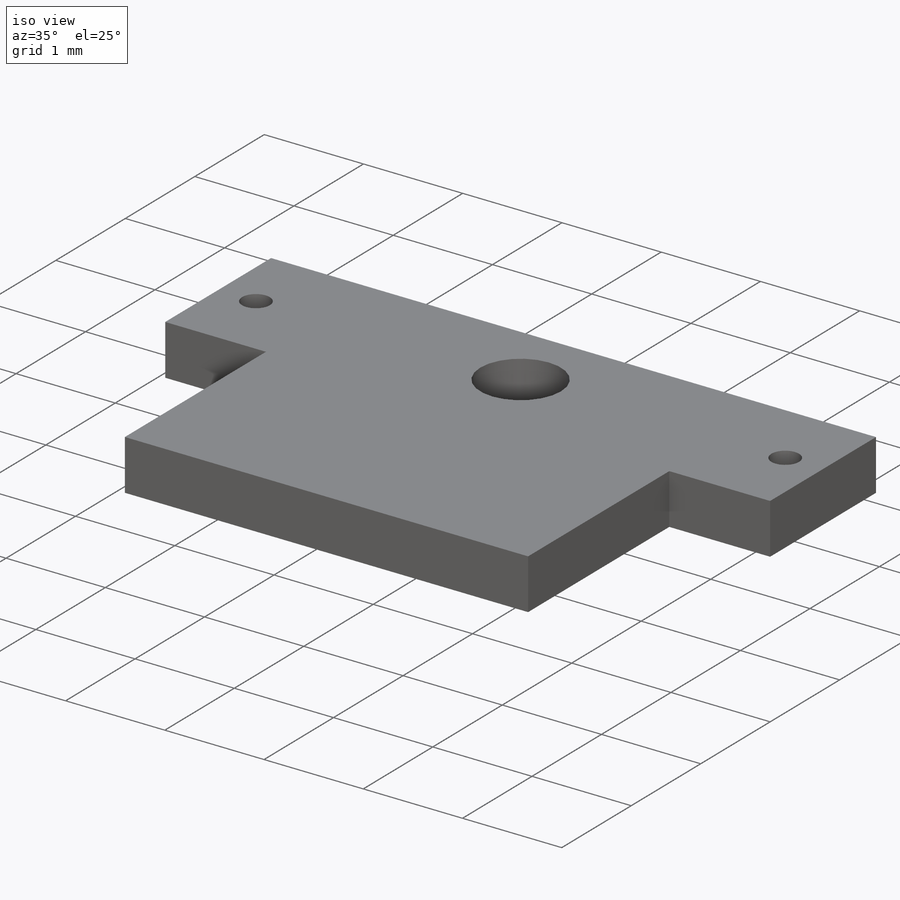
[diagram: iso view]
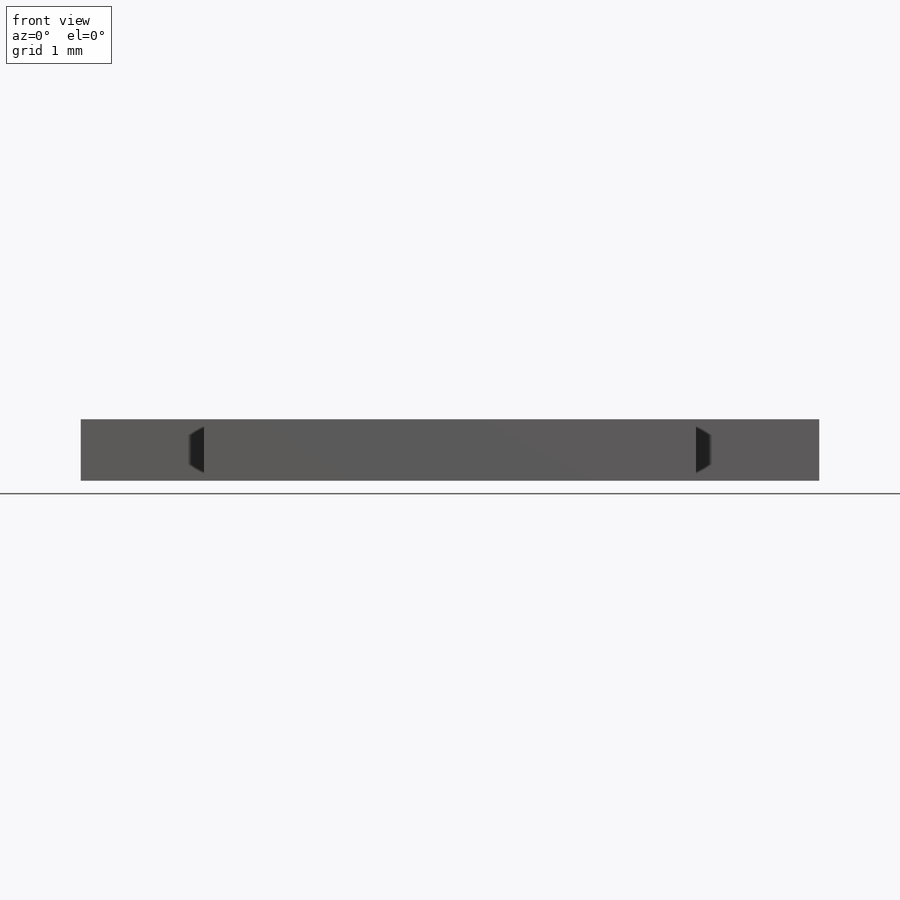
[diagram: front view]
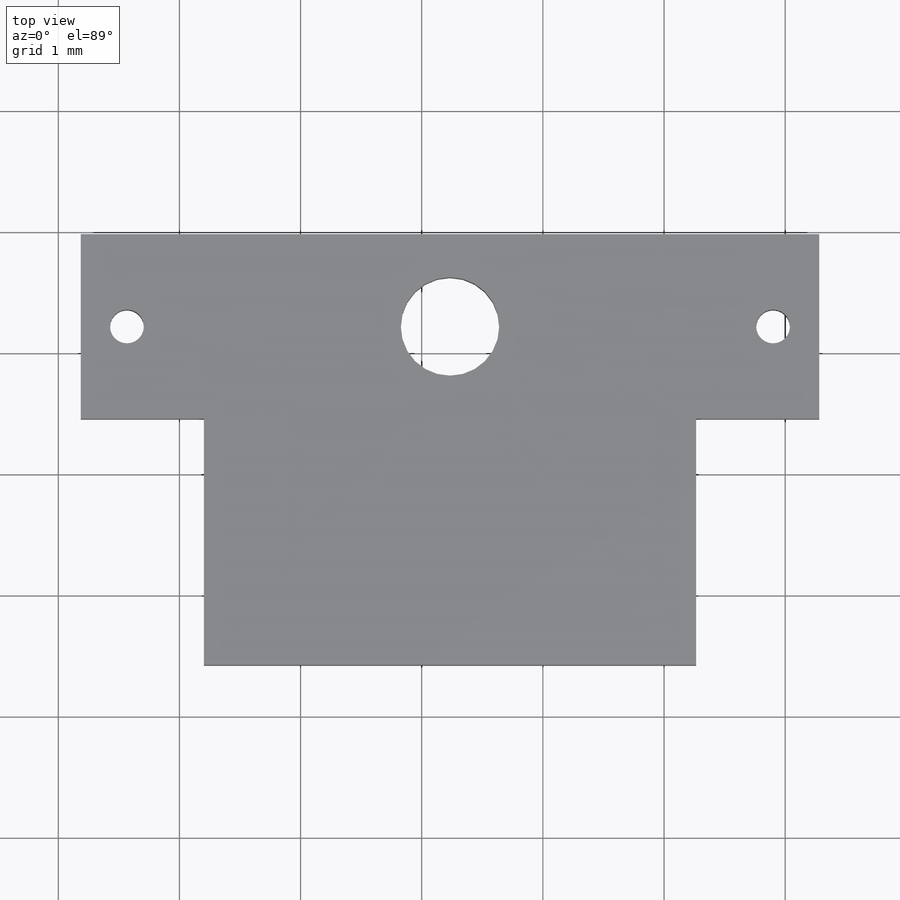
[diagram: top view]
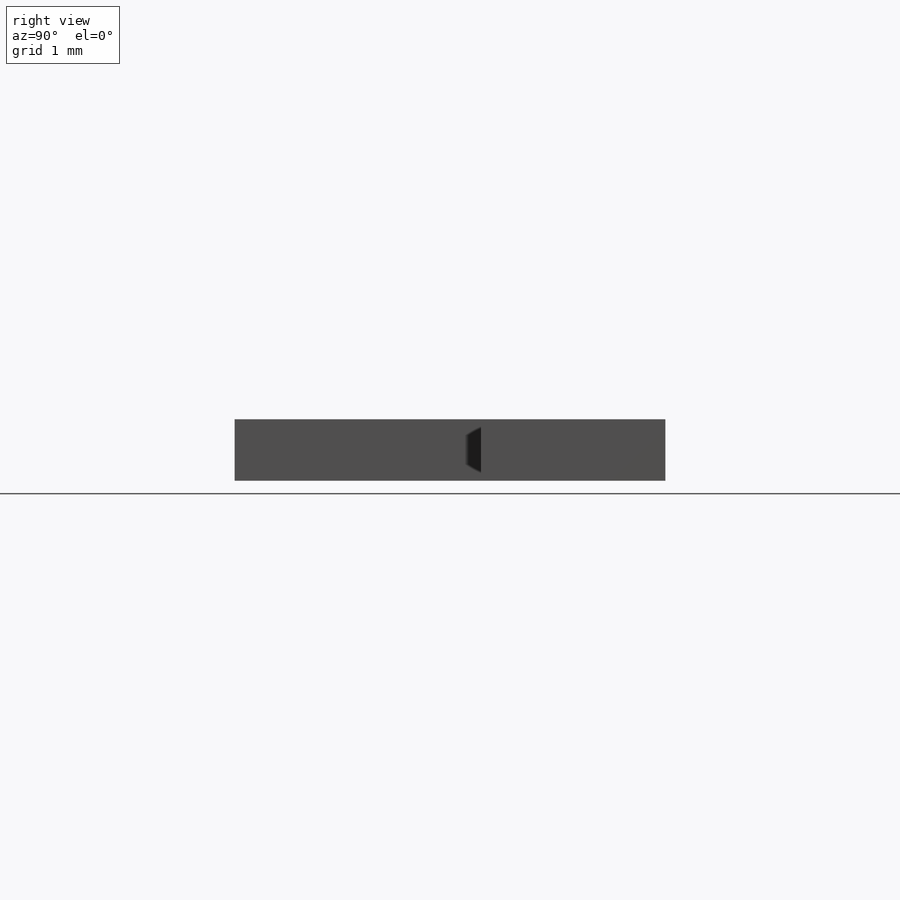
[diagram: right view]
SOLIDWORKS PART (.sldprt)
format: sldprt  version: not decoded by parser v0  size: 202,240 bytes
history: native  units: mm
features: sketch x5, extrude x2, cut_extrude x2, material x1 + 1 further entry (+11 scaffold rows collapsed)
feature tree (22):
  scaffold x11  (default folders/planes/origin — collapsed)
  material  "Material <not specified>"
  "Annotations"  RD1=4.064mm RD2=2.032mm RD3=6.096mm
  sketch  "elec_bounding"  dims[c1.D1=~3.775648mm c1.D2=~2.297473mm c2.D1=0.254mm c2.D2=0.254mm c2.D3=0.254mm c2.D4=0.254mm c2.D5=0.254mm c3.D1=4.064mm c3.D2=2.032mm]
  sketch  "shuttle"  dims[c1.D1=1.524mm c1.D2=1.524mm c1.D3=1.524mm c2.D2=6.096mm c2.D3=1.016mm c2.D4=1.016mm c2.D5=0.0mm]
  sketch  "drive_screw"  dims[D1=2.032mm D2=2.032mm D3=0.762mm]
  sketch  "guide_holes"  dims[D1=0.381mm D3=0.762mm D2=2.0]
  extrude  "shuttle_extr"  Depth=0.508mm
  extrude  "elec_bounding_extr"  Depth=0.508mm
  cut_extrude  "drive_screw_extr"  Depth=0.508mm
  cut_extrude  "guide_holes_extr"  Depth=0.508mm
  sketch  "electrodes"  dims[c1.D1=~0.148709mm c2.D1=8.0 c2.D2=4.0]
decode coverage: 9 of 9 modeling features carry decoded parameters; 1 rows unclassified (native names shown)
note: ~ marks probable driven/reference dimensions
note: suppression state not decoded; provenance and decode notes live in map.json
